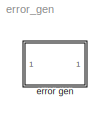
MODEL error_gen
KIND model
CONFIG AbsTol = auto
CONFIG FixedStep = auto
CONFIG MaxStep = auto
CONFIG MinStep = auto
CONFIG RelTol = 1e-3
CONFIG Solver = ode45
CONFIG SolverMode = Auto
CONFIG StartTime = 0.0
CONFIG StopTime = 10.0
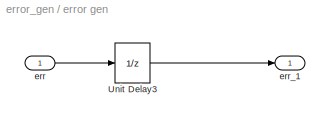
BLOCK [SubSystem] error gen
  MaskEnableString = on
  MaskIconFrame = on
  MaskIconOpaque = on
  MaskIconRotate = none
  MaskIconUnits = autoscale
  MaskPromptString = Delay step
  MaskStyleString = edit
  MaskToolTipString = on
  MaskTunableValueString = on
  MaskValueString = 4e-6
  MaskVariables = D=@1;
  MaskVisibilityString = on
  Ports = [1, 1]
  TreatAsAtomicUnit = off
BLOCK [UnitDelay] error gen/Unit Delay3
  SampleTime = -1
BLOCK [Inport] error gen/err
BLOCK [Outport] error gen/err_1
LINE error gen/Unit Delay3:1 -> error gen/err_1:1
LINE error gen/err:1 -> error gen/Unit Delay3:1
